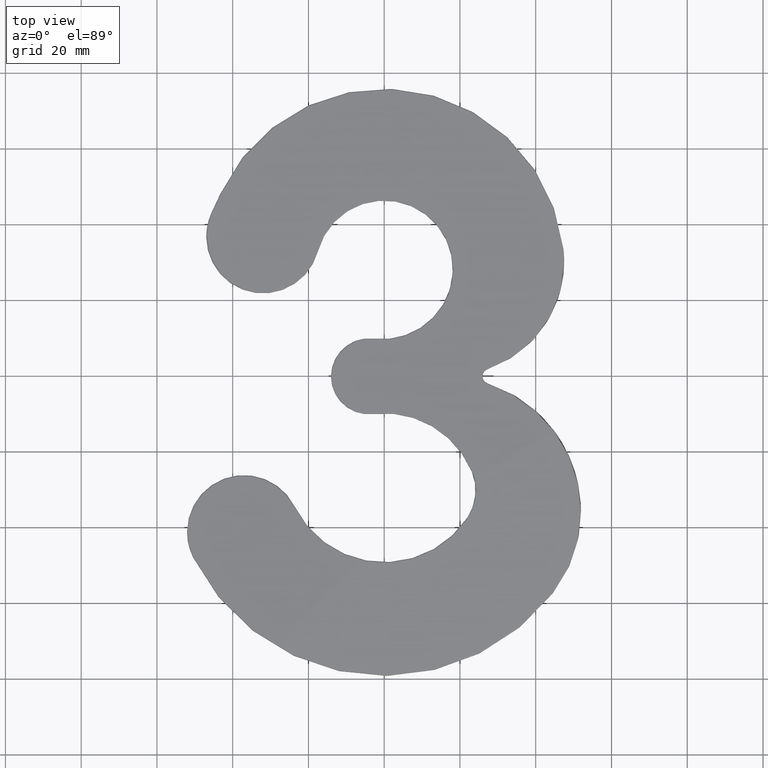
[diagram: clean part render]
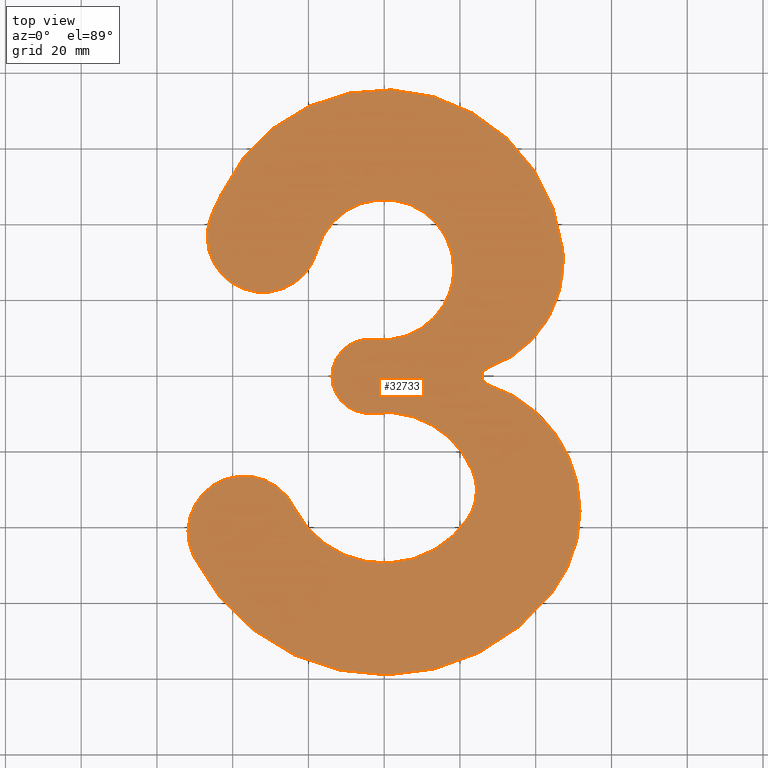
[diagram: same view with one face highlighted and labeled with its STEP entity id]
A machine part, top view. The second image highlights one B-rep face of the part: STEP entity #32733.
In plain terms, the highlighted planar face has unit normal (0, 0, 1).
Its self-contained STEP definition (entity closure, byte-faithful):
#177 = CIRCLE ( 'NONE', #16103, 35.10924754992338848 ) ;
#653 = DIRECTION ( 'NONE',  ( 1.000000000000000000, 0.000000000000000000, 0.000000000000000000 ) ) ;
#1315 = DIRECTION ( 'NONE',  ( 1.000000000000000000, 0.000000000000000000, 0.000000000000000000 ) ) ;
#1333 = DIRECTION ( 'NONE',  ( 1.000000000000000000, 0.000000000000000000, 0.000000000000000000 ) ) ;
#1356 = AXIS2_PLACEMENT_3D ( 'NONE', #15909, #18814, #19071 ) ;
#1411 = FACE_OUTER_BOUND ( 'NONE', #26766, .T. ) ;
#1571 = CARTESIAN_POINT ( 'NONE',  ( 0.000000000000000000, 107.3800000000000097, 2.000000000000000000 ) ) ;
#1590 = CARTESIAN_POINT ( 'NONE',  ( 47.07874451525999149, 112.6248751049835448, 2.000000000000000000 ) ) ;
#1741 = EDGE_CURVE ( 'NONE', #5558, #32517, #30172, .T. ) ;
#2071 = CIRCLE ( 'NONE', #19735, 13.25000000000000000 ) ;
#2093 = EDGE_CURVE ( 'NONE', #26923, #17166, #35916, .T. ) ;
#2103 = CIRCLE ( 'NONE', #24379, 9.749999999999994671 ) ;
#2193 = DIRECTION ( 'NONE',  ( 1.000000000000000000, 0.000000000000000000, 0.000000000000000000 ) ) ;
#2560 = VERTEX_POINT ( 'NONE', #34730 ) ;
#2968 = AXIS2_PLACEMENT_3D ( 'NONE', #3503, #37483, #653 ) ;
#3308 = VERTEX_POINT ( 'NONE', #7133 ) ;
#3503 = CARTESIAN_POINT ( 'NONE',  ( 0.000000000000000000, 56.34584993953850329, 2.000000000000000000 ) ) ;
#3534 = VERTEX_POINT ( 'NONE', #1590 ) ;
#3740 = EDGE_CURVE ( 'NONE', #12190, #39071, #11309, .T. ) ;
#3893 = VERTEX_POINT ( 'NONE', #35003 ) ;
#4402 = ORIENTED_EDGE ( 'NONE', *, *, #25010, .T. ) ;
#4453 = CARTESIAN_POINT ( 'NONE',  ( -4.052787981726450717, 79.08030340679079018, 2.000000000000000000 ) ) ;
#4628 = DIRECTION ( 'NONE',  ( 0.000000000000000000, 0.000000000000000000, 1.000000000000000000 ) ) ;
#4884 = ORIENTED_EDGE ( 'NONE', *, *, #33681, .T. ) ;
#5558 = VERTEX_POINT ( 'NONE', #38723 ) ;
#5602 = CARTESIAN_POINT ( 'NONE',  ( 17.51166304325271739, 109.3309119558752371, 2.000000000000000000 ) ) ;
#5913 = CIRCLE ( 'NONE', #28053, 300.2499999999999432 ) ;
#5937 = AXIS2_PLACEMENT_3D ( 'NONE', #20645, #23461, #2193 ) ;
#6095 = ORIENTED_EDGE ( 'NONE', *, *, #38442, .T. ) ;
#6119 = CARTESIAN_POINT ( 'NONE',  ( 15.74974740672370821, 97.91828016622484654, 2.000000000000000000 ) ) ;
#6512 = AXIS2_PLACEMENT_3D ( 'NONE', #23923, #27127, #39757 ) ;
#6531 = CIRCLE ( 'NONE', #16621, 47.36999999999995481 ) ;
#6625 = ORIENTED_EDGE ( 'NONE', *, *, #3740, .T. ) ;
#6630 = ORIENTED_EDGE ( 'NONE', *, *, #2093, .T. ) ;
#6753 = EDGE_CURVE ( 'NONE', #2560, #18943, #5913, .T. ) ;
#6780 = CARTESIAN_POINT ( 'NONE',  ( 44.33857126294143569, 21.98256315261593130, 2.000000000000000000 ) ) ;
#6955 = DIRECTION ( 'NONE',  ( -0.000000000000000000, -0.000000000000000000, -1.000000000000000000 ) ) ;
#6979 = CIRCLE ( 'NONE', #28967, 56.09584993953851750 ) ;
#7133 = CARTESIAN_POINT ( 'NONE',  ( 27.26308938027946027, 76.93683047339879977, 2.000000000000000000 ) ) ;
#7147 = CIRCLE ( 'NONE', #7525, 29.75000000000000000 ) ;
#7220 = DIRECTION ( 'NONE',  ( -0.000000000000000000, -0.000000000000000000, -1.000000000000000000 ) ) ;
#7233 = DIRECTION ( 'NONE',  ( -0.000000000000000000, -0.000000000000000000, -1.000000000000000000 ) ) ;
#7525 = AXIS2_PLACEMENT_3D ( 'NONE', #5602, #26830, #8414 ) ;
#8115 = EDGE_CURVE ( 'NONE', #13453, #5558, #38990, .T. ) ;
#8263 = CARTESIAN_POINT ( 'NONE',  ( -37.05278798172645338, 38.00000000000001421, 2.000000000000000000 ) ) ;
#8414 = DIRECTION ( 'NONE',  ( 1.000000000000000000, 0.000000000000000000, 0.000000000000000000 ) ) ;
#8830 = CIRCLE ( 'NONE', #38500, 18.37331449653149207 ) ;
#8916 = ORIENTED_EDGE ( 'NONE', *, *, #8115, .T. ) ;
#9587 = CARTESIAN_POINT ( 'NONE',  ( -50.27125183069010461, 31.45517658957547269, 2.000000000000000000 ) ) ;
#9905 = CARTESIAN_POINT ( 'NONE',  ( 0.000000000000000000, 107.3800000000000097, 2.000000000000000000 ) ) ;
#10486 = CARTESIAN_POINT ( 'NONE',  ( 0.000000000000000000, 56.34584993953850329, 2.000000000000000000 ) ) ;
#10633 = DIRECTION ( 'NONE',  ( 0.000000000000000000, 0.000000000000000000, 1.000000000000000000 ) ) ;
#10741 = CARTESIAN_POINT ( 'NONE',  ( -31.98201937395646866, 116.0000000000001705, 2.000000000000000000 ) ) ;
#11309 = CIRCLE ( 'NONE', #22058, 29.75000000000000000 ) ;
#11365 = ORIENTED_EDGE ( 'NONE', *, *, #27558, .T. ) ;
#11486 = EDGE_CURVE ( 'NONE', #17166, #21614, #19209, .T. ) ;
#12190 = VERTEX_POINT ( 'NONE', #26497 ) ;
#12300 = DIRECTION ( 'NONE',  ( 1.000000000000000000, 0.000000000000000000, -0.000000000000000000 ) ) ;
#12574 = DIRECTION ( 'NONE',  ( 0.000000000000000000, 0.000000000000000000, 1.000000000000000000 ) ) ;
#13126 = CARTESIAN_POINT ( 'NONE',  ( 27.94721201827354662, 79.08030340679079018, 2.000000000000000000 ) ) ;
#13453 = VERTEX_POINT ( 'NONE', #34310 ) ;
#13477 = CARTESIAN_POINT ( 'NONE',  ( 47.26166304325271739, 109.3309119558752371, 2.000000000000000000 ) ) ;
#13723 = DIRECTION ( 'NONE',  ( 1.000000000000000000, 0.000000000000000000, 0.000000000000000000 ) ) ;
#14432 = DIRECTION ( 'NONE',  ( 1.000000000000000000, 0.000000000000000000, 0.000000000000000000 ) ) ;
#15256 = ORIENTED_EDGE ( 'NONE', *, *, #38498, .T. ) ;
#15386 = CIRCLE ( 'NONE', #30851, 14.75000000000001243 ) ;
#15909 = CARTESIAN_POINT ( 'NONE',  ( -0.6640864105024327779, 107.7789524021768557, 2.000000000000000000 ) ) ;
#16103 = AXIS2_PLACEMENT_3D ( 'NONE', #39139, #23568, #38619 ) ;
#16204 = DIRECTION ( 'NONE',  ( 0.000000000000000000, 0.000000000000000000, 1.000000000000000000 ) ) ;
#16217 = CIRCLE ( 'NONE', #6512, 35.10924754992338848 ) ;
#16513 = CARTESIAN_POINT ( 'NONE',  ( 0.000000000000000000, 107.3800000000000097, 2.000000000000000000 ) ) ;
#16621 = AXIS2_PLACEMENT_3D ( 'NONE', #16513, #34633, #1315 ) ;
#16873 = DIRECTION ( 'NONE',  ( 1.000000000000000000, 0.000000000000000000, 0.000000000000000000 ) ) ;
#16917 = VERTEX_POINT ( 'NONE', #17539 ) ;
#17139 = ORIENTED_EDGE ( 'NONE', *, *, #21858, .T. ) ;
#17166 = VERTEX_POINT ( 'NONE', #30911 ) ;
#17539 = CARTESIAN_POINT ( 'NONE',  ( -2.909462712042671928, 88.76303583765458427, 2.000000000000000000 ) ) ;
#17592 = CARTESIAN_POINT ( 'NONE',  ( -17.74024457164142277, 112.1614650607108956, 2.000000000000000000 ) ) ;
#18078 = VERTEX_POINT ( 'NONE', #17592 ) ;
#18680 = PLANE ( 'NONE',  #37367 ) ;
#18814 = DIRECTION ( 'NONE',  ( -0.000000000000000000, -0.000000000000000000, -1.000000000000000000 ) ) ;
#18943 = VERTEX_POINT ( 'NONE', #32368 ) ;
#19000 = EDGE_CURVE ( 'NONE', #18943, #18078, #15386, .T. ) ;
#19071 = DIRECTION ( 'NONE',  ( 1.000000000000000000, 0.000000000000000000, 0.000000000000000000 ) ) ;
#19209 = CIRCLE ( 'NONE', #31958, 14.75000000000000000 ) ;
#19221 = DIRECTION ( 'NONE',  ( 1.000000000000000000, 0.000000000000000000, 0.000000000000000000 ) ) ;
#19477 = AXIS2_PLACEMENT_3D ( 'NONE', #34456, #6955, #37437 ) ;
#19735 = AXIS2_PLACEMENT_3D ( 'NONE', #37569, #7220, #19221 ) ;
#19775 = EDGE_CURVE ( 'NONE', #3893, #35672, #22601, .T. ) ;
#20028 = DIRECTION ( 'NONE',  ( -0.000000000000000000, -0.000000000000000000, -1.000000000000000000 ) ) ;
#20312 = ORIENTED_EDGE ( 'NONE', *, *, #6753, .T. ) ;
#20531 = CIRCLE ( 'NONE', #1356, 19.14802333204112372 ) ;
#20645 = CARTESIAN_POINT ( 'NONE',  ( 0.05145657611278168370, 44.32177673189492850, 2.000000000000000000 ) ) ;
#21614 = VERTEX_POINT ( 'NONE', #9587 ) ;
#21858 = EDGE_CURVE ( 'NONE', #22575, #33964, #16217, .T. ) ;
#22058 = AXIS2_PLACEMENT_3D ( 'NONE', #31269, #16204, #31525 ) ;
#22122 = CARTESIAN_POINT ( 'NONE',  ( 51.69721201827354662, 43.48984299116794716, 2.000000000000000000 ) ) ;
#22308 = DIRECTION ( 'NONE',  ( 1.000000000000000000, -7.553230425808201401E-16, 0.000000000000000000 ) ) ;
#22401 = CARTESIAN_POINT ( 'NONE',  ( -316.0699025797417789, 252.0848067039672173, 2.000000000000000000 ) ) ;
#22575 = VERTEX_POINT ( 'NONE', #6780 ) ;
#22601 = CIRCLE ( 'NONE', #33182, 18.37331449653149207 ) ;
#23247 = EDGE_CURVE ( 'NONE', #35672, #16917, #20531, .T. ) ;
#23405 = ORIENTED_EDGE ( 'NONE', *, *, #23247, .T. ) ;
#23461 = DIRECTION ( 'NONE',  ( -0.000000000000000000, -0.000000000000000000, -1.000000000000000000 ) ) ;
#23568 = DIRECTION ( 'NONE',  ( 0.000000000000000000, 0.000000000000000000, 1.000000000000000000 ) ) ;
#23675 = ORIENTED_EDGE ( 'NONE', *, *, #11486, .T. ) ;
#23923 = CARTESIAN_POINT ( 'NONE',  ( 16.58796446835016170, 43.48984299116794716, 2.000000000000000000 ) ) ;
#24379 = AXIS2_PLACEMENT_3D ( 'NONE', #4453, #10633, #13723 ) ;
#25009 = CIRCLE ( 'NONE', #29611, 2.250000000000001776 ) ;
#25010 = EDGE_CURVE ( 'NONE', #3534, #2560, #6531, .T. ) ;
#25696 = EDGE_CURVE ( 'NONE', #21614, #22575, #6979, .T. ) ;
#26497 = CARTESIAN_POINT ( 'NONE',  ( 27.21346248096739373, 81.20729932039829180, 2.000000000000000000 ) ) ;
#26663 = EDGE_CURVE ( 'NONE', #18078, #3893, #8830, .T. ) ;
#26766 = EDGE_LOOP ( 'NONE', ( #31937, #30877, #28758, #23405, #6095, #8916, #36956, #11365, #6630, #23675, #39724, #17139, #15256, #29129, #6625, #4884, #4402, #20312 ) ) ;
#26830 = DIRECTION ( 'NONE',  ( 0.000000000000000000, 0.000000000000000000, 1.000000000000000000 ) ) ;
#26923 = VERTEX_POINT ( 'NONE', #27897 ) ;
#27127 = DIRECTION ( 'NONE',  ( 0.000000000000000000, 0.000000000000000000, 1.000000000000000000 ) ) ;
#27558 = EDGE_CURVE ( 'NONE', #32517, #26923, #2071, .T. ) ;
#27897 = CARTESIAN_POINT ( 'NONE',  ( 22.15547263682106305, 41.63278546453792472, 2.000000000000000000 ) ) ;
#28053 = AXIS2_PLACEMENT_3D ( 'NONE', #22401, #37808, #32003 ) ;
#28758 = ORIENTED_EDGE ( 'NONE', *, *, #19775, .T. ) ;
#28967 = AXIS2_PLACEMENT_3D ( 'NONE', #10486, #38046, #1333 ) ;
#29129 = ORIENTED_EDGE ( 'NONE', *, *, #32329, .T. ) ;
#29611 = AXIS2_PLACEMENT_3D ( 'NONE', #13126, #34852, #34591 ) ;
#30172 = CIRCLE ( 'NONE', #19477, 13.25000000000000000 ) ;
#30851 = AXIS2_PLACEMENT_3D ( 'NONE', #10741, #4628, #16873 ) ;
#30877 = ORIENTED_EDGE ( 'NONE', *, *, #26663, .T. ) ;
#30911 = CARTESIAN_POINT ( 'NONE',  ( -23.83432413276282702, 44.54482341042459126, 2.000000000000000000 ) ) ;
#31269 = CARTESIAN_POINT ( 'NONE',  ( 17.51166304325271739, 109.3309119558752371, 2.000000000000000000 ) ) ;
#31525 = DIRECTION ( 'NONE',  ( 1.000000000000000000, 0.000000000000000000, 0.000000000000000000 ) ) ;
#31937 = ORIENTED_EDGE ( 'NONE', *, *, #19000, .T. ) ;
#31958 = AXIS2_PLACEMENT_3D ( 'NONE', #8263, #32813, #14432 ) ;
#32003 = DIRECTION ( 'NONE',  ( 1.000000000000000000, -9.244155075979656397E-16, 0.000000000000000000 ) ) ;
#32329 = EDGE_CURVE ( 'NONE', #3308, #12190, #25009, .T. ) ;
#32368 = CARTESIAN_POINT ( 'NONE',  ( -45.28454723835436369, 122.3722250758208645, 2.000000000000000000 ) ) ;
#32517 = VERTEX_POINT ( 'NONE', #34279 ) ;
#32733 = ADVANCED_FACE ( 'NONE', ( #1411 ), #18680, .T. ) ;
#32813 = DIRECTION ( 'NONE',  ( 0.000000000000000000, 0.000000000000000000, 1.000000000000000000 ) ) ;
#33182 = AXIS2_PLACEMENT_3D ( 'NONE', #1571, #20028, #38557 ) ;
#33648 = CARTESIAN_POINT ( 'NONE',  ( -0.3320432052512163890, 107.5794762010884256, 2.000000000000000000 ) ) ;
#33681 = EDGE_CURVE ( 'NONE', #39071, #3534, #7147, .T. ) ;
#33964 = VERTEX_POINT ( 'NONE', #22122 ) ;
#34279 = CARTESIAN_POINT ( 'NONE',  ( 24.36765985380260346, 48.96280517576887803, 2.000000000000000000 ) ) ;
#34310 = CARTESIAN_POINT ( 'NONE',  ( -2.909462712042667043, 69.39757097592693924, 2.000000000000000000 ) ) ;
#34456 = CARTESIAN_POINT ( 'NONE',  ( 11.11765985380260524, 48.96280517576887803, 2.000000000000000000 ) ) ;
#34591 = DIRECTION ( 'NONE',  ( 1.000000000000000000, 0.000000000000000000, 0.000000000000000000 ) ) ;
#34633 = DIRECTION ( 'NONE',  ( 0.000000000000000000, 0.000000000000000000, 1.000000000000000000 ) ) ;
#34730 = CARTESIAN_POINT ( 'NONE',  ( -43.07068432541959879, 127.0988501627262934, 2.000000000000000000 ) ) ;
#34852 = DIRECTION ( 'NONE',  ( -0.000000000000000000, -0.000000000000000000, -1.000000000000000000 ) ) ;
#35003 = CARTESIAN_POINT ( 'NONE',  ( 18.37331449653149207, 107.3800000000000097, 2.000000000000000000 ) ) ;
#35672 = VERTEX_POINT ( 'NONE', #6119 ) ;
#35916 = CIRCLE ( 'NONE', #2968, 26.59584993953851395 ) ;
#36956 = ORIENTED_EDGE ( 'NONE', *, *, #1741, .T. ) ;
#37367 = AXIS2_PLACEMENT_3D ( 'NONE', #33648, #12574, #12300 ) ;
#37437 = DIRECTION ( 'NONE',  ( 1.000000000000000000, -5.236901059552625310E-15, 0.000000000000000000 ) ) ;
#37483 = DIRECTION ( 'NONE',  ( -0.000000000000000000, -0.000000000000000000, -1.000000000000000000 ) ) ;
#37569 = CARTESIAN_POINT ( 'NONE',  ( 11.11765985380260524, 48.96280517576887803, 2.000000000000000000 ) ) ;
#37808 = DIRECTION ( 'NONE',  ( -0.000000000000000000, -0.000000000000000000, -1.000000000000000000 ) ) ;
#38046 = DIRECTION ( 'NONE',  ( 0.000000000000000000, 0.000000000000000000, 1.000000000000000000 ) ) ;
#38442 = EDGE_CURVE ( 'NONE', #16917, #13453, #2103, .T. ) ;
#38498 = EDGE_CURVE ( 'NONE', #33964, #3308, #177, .T. ) ;
#38500 = AXIS2_PLACEMENT_3D ( 'NONE', #9905, #7233, #22308 ) ;
#38557 = DIRECTION ( 'NONE',  ( 1.000000000000000000, 0.000000000000000000, 0.000000000000000000 ) ) ;
#38619 = DIRECTION ( 'NONE',  ( 1.000000000000000000, 0.000000000000000000, 0.000000000000000000 ) ) ;
#38723 = CARTESIAN_POINT ( 'NONE',  ( 23.33659263958510977, 54.08727408254637226, 2.000000000000000000 ) ) ;
#38990 = CIRCLE ( 'NONE', #5937, 25.25000000000000355 ) ;
#39071 = VERTEX_POINT ( 'NONE', #13477 ) ;
#39139 = CARTESIAN_POINT ( 'NONE',  ( 16.58796446835016170, 43.48984299116794716, 2.000000000000000000 ) ) ;
#39724 = ORIENTED_EDGE ( 'NONE', *, *, #25696, .T. ) ;
#39757 = DIRECTION ( 'NONE',  ( 1.000000000000000000, 0.000000000000000000, 0.000000000000000000 ) ) ;